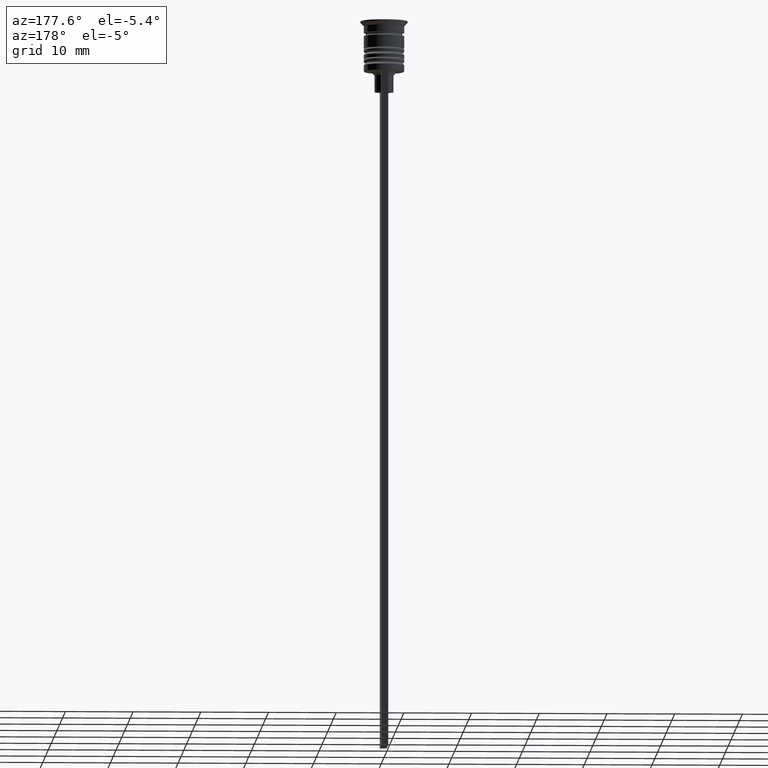
[diagram: clean part render]
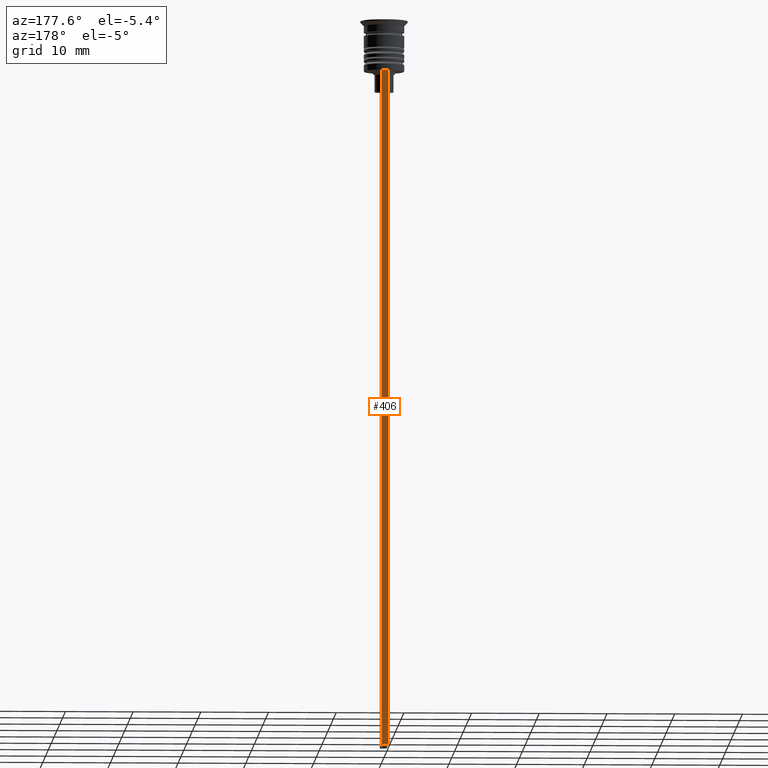
[diagram: same view with one face highlighted and labeled with its STEP entity id]
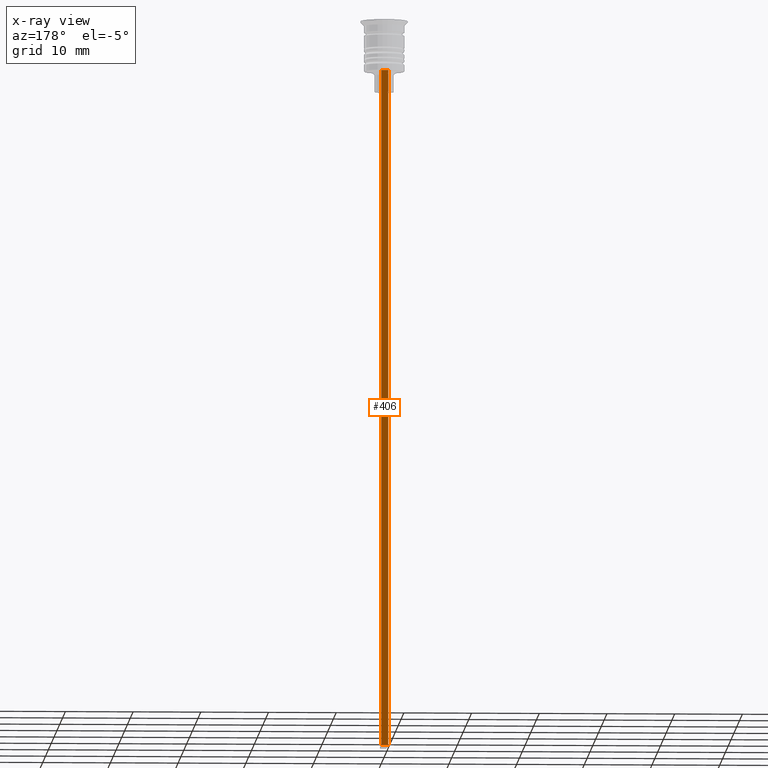
[diagram: x-ray of the same camera — body ghosted, the highlighted face saturated]
A machine part, auxiliary view. The second image highlights one B-rep face of the part: STEP entity #406.
The next image is the same camera in x-ray: the body ghosted, the highlighted face saturated — about 0% of this face is hidden behind the body in this view.
In plain terms, the highlighted planar face has unit normal (0, -1, -0).
Its self-contained STEP definition (entity closure, byte-faithful):
#9 = AXIS2_PLACEMENT_3D ( 'NONE', #936, #1490, #858 ) ;
#144 = CARTESIAN_POINT ( 'NONE',  ( 0.4999999999999998890, 3.000000000000000000, -7.500000000000000000 ) ) ;
#251 = DIRECTION ( 'NONE',  ( 0.000000000000000000, 0.000000000000000000, -1.000000000000000000 ) ) ;
#259 = CARTESIAN_POINT ( 'NONE',  ( -0.5000000000000001110, 3.000000000000000000, -1.417237469701779329 ) ) ;
#275 = EDGE_CURVE ( 'NONE', #568, #535, #2211, .T. ) ;
#305 = DIRECTION ( 'NONE',  ( -1.000000000000000000, 0.000000000000000000, 0.000000000000000000 ) ) ;
#345 = DIRECTION ( 'NONE',  ( 1.000000000000000000, 0.000000000000000000, 0.000000000000000000 ) ) ;
#352 = CARTESIAN_POINT ( 'NONE',  ( 0.4999999999999998890, 3.000000000000000000, -107.5000000000000000 ) ) ;
#403 = FACE_OUTER_BOUND ( 'NONE', #1278, .T. ) ;
#406 = ADVANCED_FACE ( 'NONE', ( #403 ), #632, .F. ) ;
#453 = EDGE_CURVE ( 'NONE', #1350, #633, #825, .T. ) ;
#535 = VERTEX_POINT ( 'NONE', #1563 ) ;
#568 = VERTEX_POINT ( 'NONE', #1974 ) ;
#632 = PLANE ( 'NONE',  #9 ) ;
#633 = VERTEX_POINT ( 'NONE', #352 ) ;
#685 = DIRECTION ( 'NONE',  ( 0.000000000000000000, 0.000000000000000000, -1.000000000000000000 ) ) ;
#825 = LINE ( 'NONE', #1582, #1468 ) ;
#858 = DIRECTION ( 'NONE',  ( 0.000000000000000000, 0.000000000000000000, -1.000000000000000000 ) ) ;
#912 = ORIENTED_EDGE ( 'NONE', *, *, #453, .T. ) ;
#936 = CARTESIAN_POINT ( 'NONE',  ( 0.4999999999999998890, 3.000000000000000000, -1.417237469701779329 ) ) ;
#1000 = CARTESIAN_POINT ( 'NONE',  ( 0.4999999999999998890, 3.000000000000000000, -107.5000000000000000 ) ) ;
#1226 = ORIENTED_EDGE ( 'NONE', *, *, #2319, .T. ) ;
#1278 = EDGE_LOOP ( 'NONE', ( #2234, #1226, #912, #2242 ) ) ;
#1350 = VERTEX_POINT ( 'NONE', #2261 ) ;
#1468 = VECTOR ( 'NONE', #685, 1000.000000000000000 ) ;
#1490 = DIRECTION ( 'NONE',  ( 0.000000000000000000, -1.000000000000000000, -0.000000000000000000 ) ) ;
#1563 = CARTESIAN_POINT ( 'NONE',  ( -0.5000000000000001110, 3.000000000000000000, -107.5000000000000000 ) ) ;
#1582 = CARTESIAN_POINT ( 'NONE',  ( 0.4999999999999998890, 3.000000000000000000, -1.417237469701779329 ) ) ;
#1587 = VECTOR ( 'NONE', #251, 1000.000000000000000 ) ;
#1741 = LINE ( 'NONE', #144, #1787 ) ;
#1787 = VECTOR ( 'NONE', #345, 1000.000000000000000 ) ;
#1944 = LINE ( 'NONE', #1000, #2316 ) ;
#1974 = CARTESIAN_POINT ( 'NONE',  ( -0.5000000000000001110, 3.000000000000000000, -7.500000000000000000 ) ) ;
#2211 = LINE ( 'NONE', #259, #1587 ) ;
#2234 = ORIENTED_EDGE ( 'NONE', *, *, #275, .F. ) ;
#2242 = ORIENTED_EDGE ( 'NONE', *, *, #2305, .T. ) ;
#2261 = CARTESIAN_POINT ( 'NONE',  ( 0.4999999999999998890, 3.000000000000000000, -7.500000000000000000 ) ) ;
#2305 = EDGE_CURVE ( 'NONE', #633, #535, #1944, .T. ) ;
#2316 = VECTOR ( 'NONE', #305, 1000.000000000000000 ) ;
#2319 = EDGE_CURVE ( 'NONE', #568, #1350, #1741, .T. ) ;